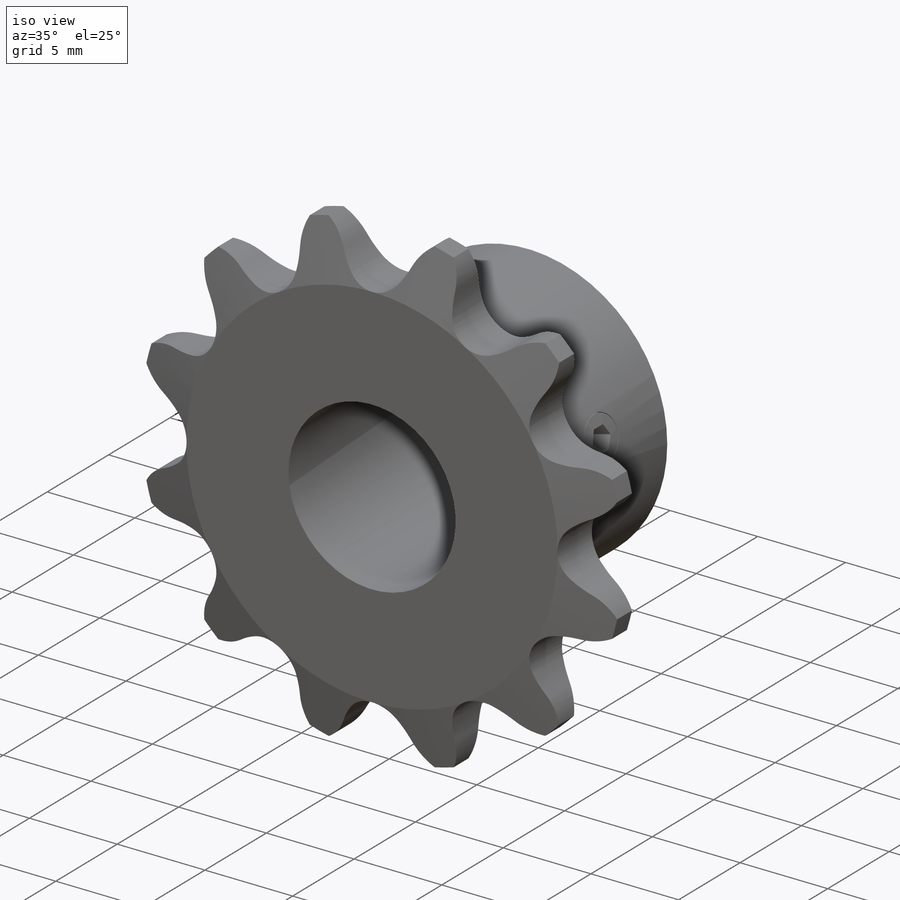
[diagram: iso view]
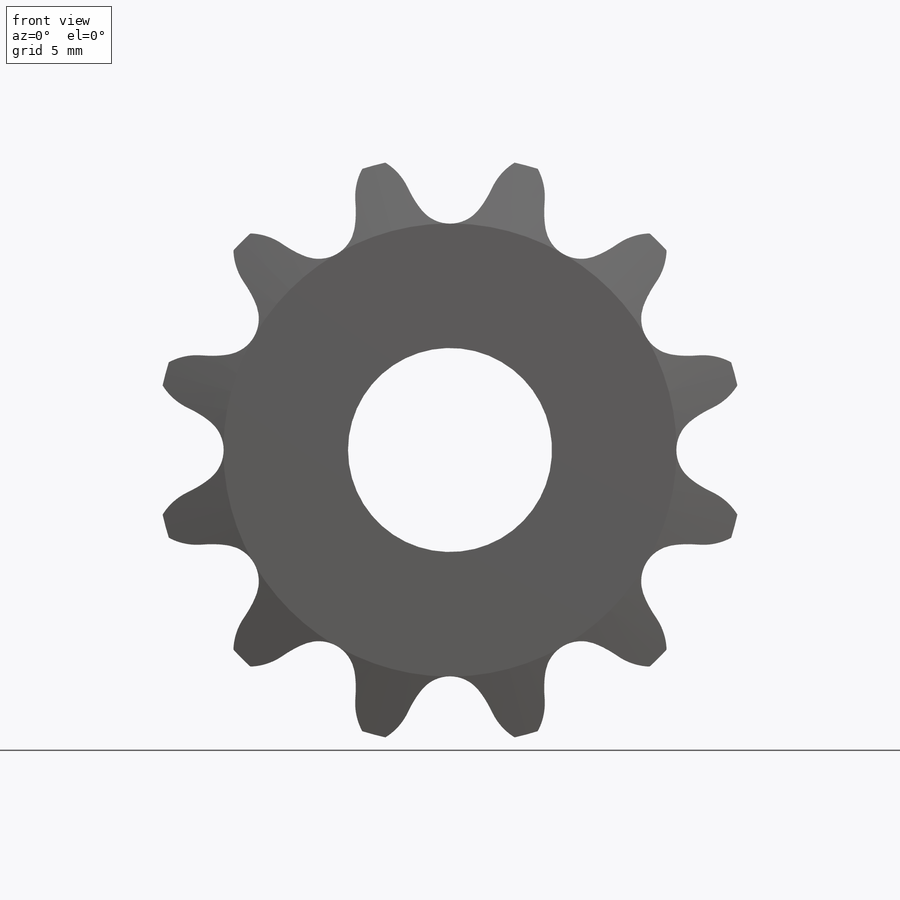
[diagram: front view]
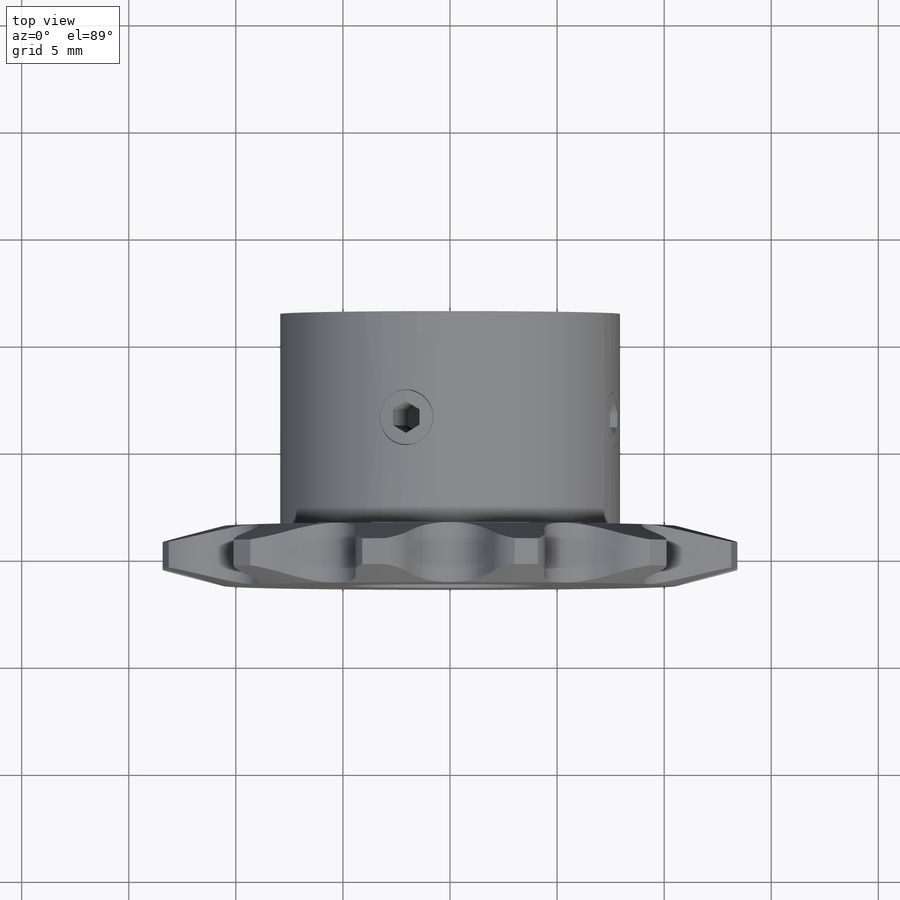
[diagram: top view]
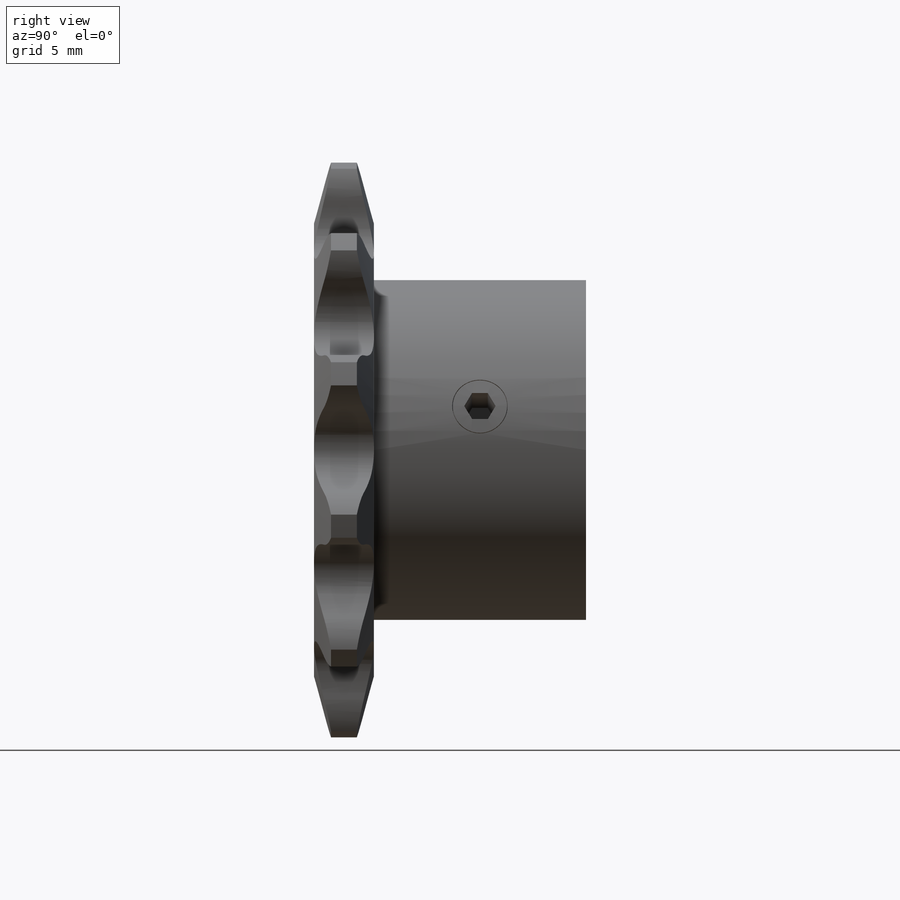
[diagram: right view]
SOLIDWORKS PART (.sldprt)
format: sldprt  version: not decoded by parser v0  size: 734,208 bytes
history: native  units: mm
features: sketch x11, cut_extrude x5, revolve x2, pattern_circular x2, plane x2, material x1, extrude x1 (+11 scaffold rows collapsed)
feature tree (35):
  scaffold x11  (default folders/planes/origin — collapsed)
  material  "Material <not specified>"
  sketch  "Sprocket-BaseSketch"  dims[Hub Surface=1.397mm RightSide (1)=~0.79375mm RightSide (2)=3.175mm OD=~13.754261mm LeftSide (1)=~0.79375mm LeftSide (2)=3.175mm Tooth Width=2.794mm]
  revolve  "25 (04C) ANSI (ISO) Chain Number, 0.966in P.D."  Angle=360deg
  sketch  "Tooth-Sketch"
  cut_extrude  "Tooth-Cut, Number of teeth: 12"  Depth=25.4mm
  pattern_circular  "Tooth Pattern, 12 / 12"  Count=12 Angle=30deg
  sketch  "Sketch3"  dims[Hub Mounting=1.397mm Hub OD=7.9375mm Hub Width=9.906mm]
  revolve  "Hub-Revolve1"  Angle=360deg
  sketch  "Sketch4"  dims[Bore Diameter =9.525mm]
  cut_extrude  "Cut-Extrude1"  [1 undecoded]
  sketch  "Sketch5"
  plane  "Plane1"
  sketch  "Sketch6"
  plane  "Plane2"
  sketch  "Sketch7"
  cut_extrude  "Cut-Extrude5"  Depth=5.08mm
  sketch  "Sketch8"
  extrude  "Extrude1"  Depth=5.08mm
  sketch  "Sketch9"
  cut_extrude  "Cut-Extrude6"  Depth=0.635mm
  pattern_circular  "CirPattern6"  Count=2 Angle=90deg
  sketch  "Sketch10"
  cut_extrude  "Cut-Extrude7"  [1 undecoded]
  sketch  "Sketch11"  dims[D1=~0.98425mm D2=~0.98425mm]
decode coverage: 12 of 21 modeling features carry decoded parameters
note: ~ marks probable driven/reference dimensions
note: 2 parameter values undecoded
note: suppression state not decoded; provenance and decode notes live in map.json
